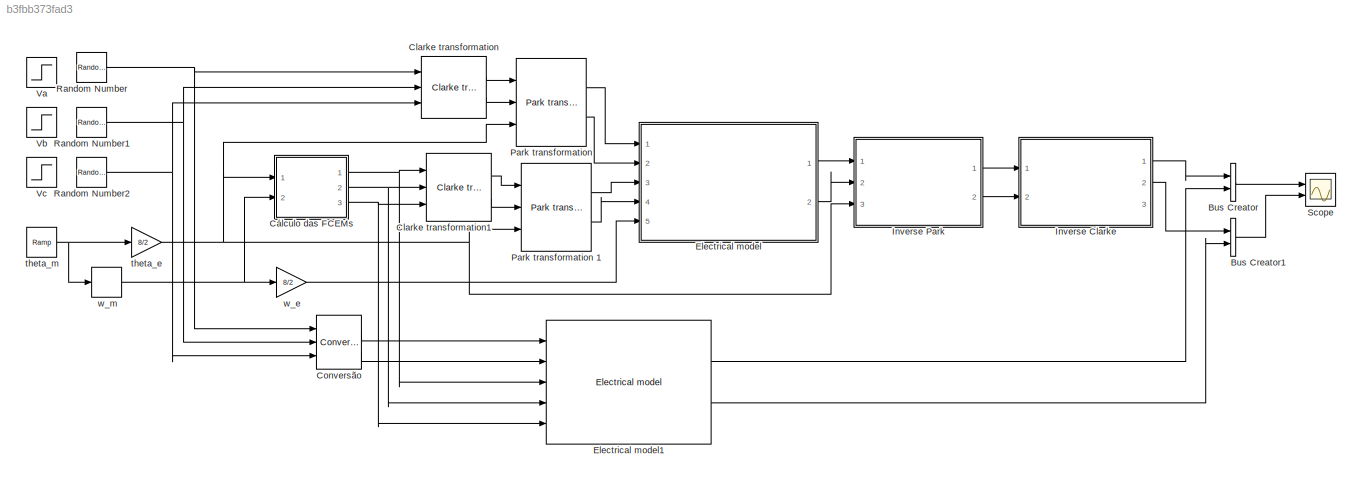
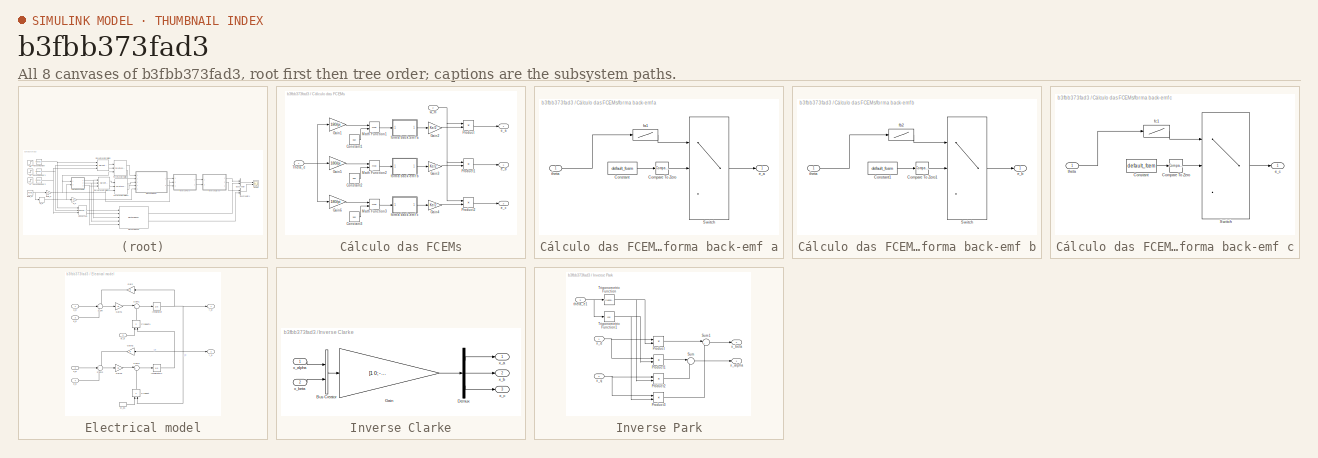
[diagram: thumbnail index - all 8 canvases of the model, root first then tree order]
MODEL slx_b3fbb373fad3
KIND model
BLOCK [BusCreator] Bus Creator
  DisplayOption = bar
  Inputs = 2
  Ports = [2, 1]
BLOCK [BusCreator] Bus Creator1
  DisplayOption = bar
  Inputs = 2
  Ports = [2, 1]
BLOCK [Reference] Clarke transformation  REF=Tools/Clarke transformation
  Ports = [3, 2]
  SourceBlock = Tools/Clarke transformation
  SourceType = SubSystem
BLOCK [Reference] Clarke transformation1  REF=Tools/Clarke transformation
  Ports = [3, 2]
  SourceBlock = Tools/Clarke transformation
  SourceType = SubSystem
BLOCK [Reference] Conversão  REF=BLDC/Conversão
  Ports = [3, 2]
  SourceBlock = BLDC/Conversão
  SourceType = SubSystem
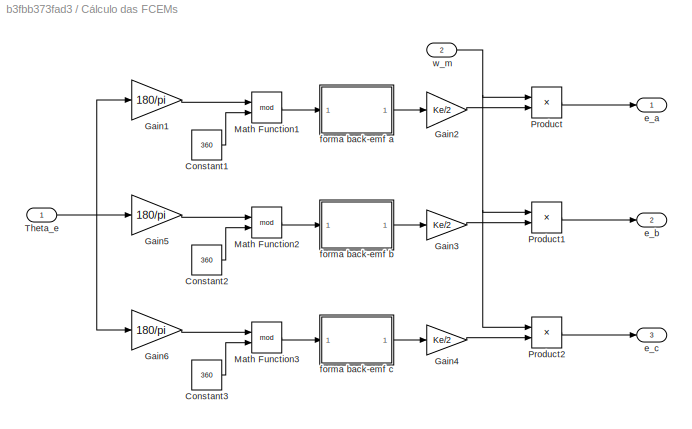
BLOCK [SubSystem] Cálculo das FCEMs
  FunctionWithSeparateData = off
  MaskHideContents = off
  MinAlgLoopOccurrences = off
  Opaque = off
  Ports = [2, 3]
  PropExecContextOutsideSubsystem = off
  RTWSystemCode = Auto
  RequestExecContextInheritance = off
BLOCK [Constant] Cálculo das FCEMs/Constant1
  Value = 360
BLOCK [Constant] Cálculo das FCEMs/Constant2
  Value = 360
BLOCK [Constant] Cálculo das FCEMs/Constant3
  Value = 360
BLOCK [Gain] Cálculo das FCEMs/Gain1
  Gain = 180/pi
  OutDataTypeStr = Inherit: Inherit via internal rule
  ParamDataTypeStr = Inherit: Inherit via internal rule
  SaturateOnIntegerOverflow = off
BLOCK [Gain] Cálculo das FCEMs/Gain2
  Gain = Ke/2
  OutDataTypeStr = Inherit: Inherit via internal rule
  ParamDataTypeStr = Inherit: Inherit via internal rule
  SaturateOnIntegerOverflow = off
BLOCK [Gain] Cálculo das FCEMs/Gain3
  Gain = Ke/2
  OutDataTypeStr = Inherit: Inherit via internal rule
  ParamDataTypeStr = Inherit: Inherit via internal rule
  SaturateOnIntegerOverflow = off
BLOCK [Gain] Cálculo das FCEMs/Gain4
  Gain = Ke/2
  OutDataTypeStr = Inherit: Inherit via internal rule
  ParamDataTypeStr = Inherit: Inherit via internal rule
  SaturateOnIntegerOverflow = off
BLOCK [Gain] Cálculo das FCEMs/Gain5
  Gain = 180/pi
  OutDataTypeStr = Inherit: Inherit via internal rule
  ParamDataTypeStr = Inherit: Inherit via internal rule
  SaturateOnIntegerOverflow = off
BLOCK [Gain] Cálculo das FCEMs/Gain6
  Gain = 180/pi
  OutDataTypeStr = Inherit: Inherit via internal rule
  ParamDataTypeStr = Inherit: Inherit via internal rule
  SaturateOnIntegerOverflow = off
BLOCK [Math] Cálculo das FCEMs/Math Function1
  Operator = mod
  Ports = [2, 1]
BLOCK [Math] Cálculo das FCEMs/Math Function2
  Operator = mod
  Ports = [2, 1]
BLOCK [Math] Cálculo das FCEMs/Math Function3
  Operator = mod
  Ports = [2, 1]
BLOCK [Product] Cálculo das FCEMs/Product
  InputSameDT = off
  OutDataTypeStr = Inherit: Inherit via internal rule
  Ports = [2, 1]
  SaturateOnIntegerOverflow = off
BLOCK [Product] Cálculo das FCEMs/Product1
  InputSameDT = off
  OutDataTypeStr = Inherit: Inherit via internal rule
  Ports = [2, 1]
  SaturateOnIntegerOverflow = off
BLOCK [Product] Cálculo das FCEMs/Product2
  InputSameDT = off
  OutDataTypeStr = Inherit: Inherit via internal rule
  Ports = [2, 1]
  SaturateOnIntegerOverflow = off
BLOCK [Inport] Cálculo das FCEMs/Theta_e
  IconDisplay = Port number
BLOCK [Outport] Cálculo das FCEMs/e_a
  IconDisplay = Port number
BLOCK [Outport] Cálculo das FCEMs/e_b
  IconDisplay = Port number
  Port = 2
BLOCK [Outport] Cálculo das FCEMs/e_c
  IconDisplay = Port number
  Port = 3
BLOCK [SubSystem] Cálculo das FCEMs/forma back-emf a
  FunctionWithSeparateData = off
  MaskHideContents = off
  MinAlgLoopOccurrences = off
  Opaque = off
  Ports = [1, 1]
  PropExecContextOutsideSubsystem = off
  RTWSystemCode = Auto
  RequestExecContextInheritance = off
BLOCK [Reference] Cálculo das FCEMs/forma back-emf a/Compare To Zero  REF=simulink/Logic and Bit
Operations/Compare
To Zero
  OutDataTypeStr = boolean
  Ports = [1, 1]
  SourceBlock = simulink/Logic and Bit\nOperations/Compare\nTo Zero
  SourceType = Compare To Zero
  ZeroCross = on
  relop = >
BLOCK [Constant] Cálculo das FCEMs/forma back-emf a/Constant
  Value = default_fcem
BLOCK [Switch] Cálculo das FCEMs/forma back-emf a/Switch
  InputSameDT = off
  SaturateOnIntegerOverflow = off
BLOCK [Outport] Cálculo das FCEMs/forma back-emf a/e_a
  IconDisplay = Port number
BLOCK [Lookup] Cálculo das FCEMs/forma back-emf a/fa1
  InputValues = [0 30 60 90 120 150 180 210 240 270 300 330 360]
  SaturateOnIntegerOverflow = off
  Table = [ 1 1 1 0 -1 -1 -1 -1 -1 0 1 1 1]
BLOCK [Inport] Cálculo das FCEMs/forma back-emf a/theta
  IconDisplay = Port number
BLOCK [SubSystem] Cálculo das FCEMs/forma back-emf b
  FunctionWithSeparateData = off
  MaskHideContents = off
  MinAlgLoopOccurrences = off
  Opaque = off
  Ports = [1, 1]
  PropExecContextOutsideSubsystem = off
  RTWSystemCode = Auto
  RequestExecContextInheritance = off
BLOCK [Reference] Cálculo das FCEMs/forma back-emf b/Compare To Zero1  REF=simulink/Logic and Bit
Operations/Compare
To Zero
  OutDataTypeStr = boolean
  Ports = [1, 1]
  SourceBlock = simulink/Logic and Bit\nOperations/Compare\nTo Zero
  SourceType = Compare To Zero
  ZeroCross = on
  relop = >
BLOCK [Constant] Cálculo das FCEMs/forma back-emf b/Constant1
  Value = default_fcem
BLOCK [Switch] Cálculo das FCEMs/forma back-emf b/Switch
  InputSameDT = off
  SaturateOnIntegerOverflow = off
BLOCK [Outport] Cálculo das FCEMs/forma back-emf b/e_b
  IconDisplay = Port number
BLOCK [Lookup] Cálculo das FCEMs/forma back-emf b/fb2
  InputValues = [0 30 60 90 120 150 180 210 240 270 300 330 360]
  SaturateOnIntegerOverflow = off
  Table = [-1 0 1 1 1 1 1 0 -1 -1 -1 -1 -1]
BLOCK [Inport] Cálculo das FCEMs/forma back-emf b/theta
  IconDisplay = Port number
BLOCK [SubSystem] Cálculo das FCEMs/forma back-emf c
  FunctionWithSeparateData = off
  MaskHideContents = off
  MinAlgLoopOccurrences = off
  Opaque = off
  Ports = [1, 1]
  PropExecContextOutsideSubsystem = off
  RTWSystemCode = Auto
  RequestExecContextInheritance = off
BLOCK [Reference] Cálculo das FCEMs/forma back-emf c/Compare To Zero  REF=simulink/Logic and Bit
Operations/Compare
To Zero
  OutDataTypeStr = boolean
  Ports = [1, 1]
  SourceBlock = simulink/Logic and Bit\nOperations/Compare\nTo Zero
  SourceType = Compare To Zero
  ZeroCross = on
  relop = >
BLOCK [Constant] Cálculo das FCEMs/forma back-emf c/Constant
  Value = default_fcem
BLOCK [Switch] Cálculo das FCEMs/forma back-emf c/Switch
  InputSameDT = off
  SaturateOnIntegerOverflow = off
BLOCK [Outport] Cálculo das FCEMs/forma back-emf c/e_c
  IconDisplay = Port number
BLOCK [Lookup] Cálculo das FCEMs/forma back-emf c/fc1
  InputValues = [0 30 60 90 120 150 180 210 240 270 300 330 360]
  SaturateOnIntegerOverflow = off
  Table = [-1 -1 -1 -1 -1 0 1 1 1 1 1 0 -1]
BLOCK [Inport] Cálculo das FCEMs/forma back-emf c/theta
  IconDisplay = Port number
BLOCK [Inport] Cálculo das FCEMs/w_m
  IconDisplay = Port number
  Port = 2
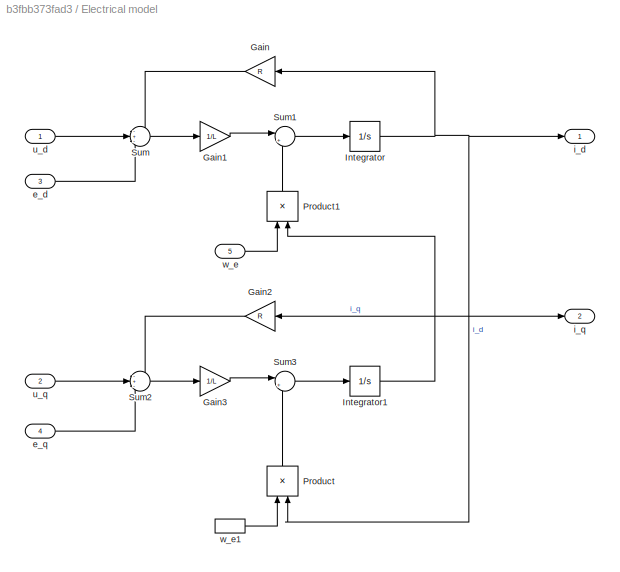
BLOCK [SubSystem] Electrical model
  FunctionWithSeparateData = off
  MaskHideContents = off
  MinAlgLoopOccurrences = off
  Opaque = off
  Ports = [5, 2]
  PropExecContextOutsideSubsystem = off
  RTWSystemCode = Auto
  RequestExecContextInheritance = off
BLOCK [Gain] Electrical model/Gain
  Gain = R
  OutDataTypeStr = Inherit: Inherit via internal rule
  ParamDataTypeStr = Inherit: Inherit via internal rule
  SaturateOnIntegerOverflow = off
BLOCK [Gain] Electrical model/Gain1
  Gain = 1/L
  OutDataTypeStr = Inherit: Inherit via internal rule
  ParamDataTypeStr = Inherit: Inherit via internal rule
  SaturateOnIntegerOverflow = off
BLOCK [Gain] Electrical model/Gain2
  Gain = R
  OutDataTypeStr = Inherit: Inherit via internal rule
  ParamDataTypeStr = Inherit: Inherit via internal rule
  SaturateOnIntegerOverflow = off
BLOCK [Gain] Electrical model/Gain3
  Gain = 1/L
  OutDataTypeStr = Inherit: Inherit via internal rule
  ParamDataTypeStr = Inherit: Inherit via internal rule
  SaturateOnIntegerOverflow = off
BLOCK [Integrator] Electrical model/Integrator
  Ports = [1, 1]
BLOCK [Integrator] Electrical model/Integrator1
  Ports = [1, 1]
BLOCK [Product] Electrical model/Product
  InputSameDT = off
  OutDataTypeStr = Inherit: Inherit via internal rule
  Ports = [2, 1]
  SaturateOnIntegerOverflow = off
BLOCK [Product] Electrical model/Product1
  InputSameDT = off
  OutDataTypeStr = Inherit: Inherit via internal rule
  Ports = [2, 1]
  SaturateOnIntegerOverflow = off
BLOCK [Sum] Electrical model/Sum
  IconShape = round
  InputSameDT = off
  Inputs = -+-
  OutDataTypeStr = Inherit: Inherit via internal rule
  Ports = [3, 1]
  SaturateOnIntegerOverflow = off
BLOCK [Sum] Electrical model/Sum1
  IconShape = round
  InputSameDT = off
  Inputs = |++
  OutDataTypeStr = Inherit: Inherit via internal rule
  Ports = [2, 1]
  SaturateOnIntegerOverflow = off
BLOCK [Sum] Electrical model/Sum2
  IconShape = round
  InputSameDT = off
  Inputs = -+-
  OutDataTypeStr = Inherit: Inherit via internal rule
  Ports = [3, 1]
  SaturateOnIntegerOverflow = off
BLOCK [Sum] Electrical model/Sum3
  IconShape = round
  InputSameDT = off
  Inputs = |+-
  OutDataTypeStr = Inherit: Inherit via internal rule
  Ports = [2, 1]
  SaturateOnIntegerOverflow = off
BLOCK [Inport] Electrical model/e_d
  IconDisplay = Port number
  Port = 3
BLOCK [Inport] Electrical model/e_q
  IconDisplay = Port number
  Port = 4
BLOCK [Outport] Electrical model/i_d
  IconDisplay = Port number
BLOCK [Outport] Electrical model/i_q
  IconDisplay = Port number
  Port = 2
BLOCK [Inport] Electrical model/u_d
  IconDisplay = Port number
BLOCK [Inport] Electrical model/u_q
  IconDisplay = Port number
  Port = 2
BLOCK [Inport] Electrical model/w_e
  IconDisplay = Port number
  Port = 5
BLOCK [InportShadow] Electrical model/w_e1
  IconDisplay = Port number
  LatchByDelayingOutsideSignal = off
  LatchInputForFeedbackSignals = off
  Port = 5
BLOCK [Reference] Electrical model1  REF=BLDC/BLDC/Electrical model
  Ports = [5, 2]
  SourceBlock = BLDC/BLDC/Electrical model
  SourceType = SubSystem
BLOCK [SubSystem] Inverse Clarke
  FunctionWithSeparateData = off
  MaskHideContents = off
  MinAlgLoopOccurrences = off
  Opaque = off
  Ports = [2, 3]
  PropExecContextOutsideSubsystem = off
  RTWSystemCode = Auto
  RequestExecContextInheritance = off
BLOCK [BusCreator] Inverse Clarke/Bus Creator
  DisplayOption = bar
  Inputs = 2
  Ports = [2, 1]
BLOCK [Demux] Inverse Clarke/Demux
  DisplayOption = bar
  Outputs = 3
  Ports = [1, 3]
BLOCK [Gain] Inverse Clarke/Gain
  Gain = [1 0; -1/2 sqrt(3)/2; -1/2 -sqrt(3)/2]
  Multiplication = Matrix(K*u)
  OutDataTypeStr = Inherit: Inherit via internal rule
  ParamDataTypeStr = Inherit: Inherit via internal rule
  SaturateOnIntegerOverflow = off
BLOCK [Outport] Inverse Clarke/x_a
  IconDisplay = Port number
BLOCK [Inport] Inverse Clarke/x_alpha
  IconDisplay = Port number
BLOCK [Outport] Inverse Clarke/x_b
  IconDisplay = Port number
  Port = 2
BLOCK [Inport] Inverse Clarke/x_beta
  IconDisplay = Port number
  Port = 2
BLOCK [Outport] Inverse Clarke/x_c
  IconDisplay = Port number
  Port = 3
BLOCK [SubSystem] Inverse Park
  FunctionWithSeparateData = off
  MaskHideContents = off
  MinAlgLoopOccurrences = off
  Opaque = off
  Ports = [3, 2]
  PropExecContextOutsideSubsystem = off
  RTWSystemCode = Auto
  RequestExecContextInheritance = off
BLOCK [Product] Inverse Park/Product
  InputSameDT = off
  OutDataTypeStr = Inherit: Inherit via internal rule
  Ports = [2, 1]
  SaturateOnIntegerOverflow = off
BLOCK [Product] Inverse Park/Product1
  InputSameDT = off
  OutDataTypeStr = Inherit: Inherit via internal rule
  Ports = [2, 1]
  SaturateOnIntegerOverflow = off
BLOCK [Product] Inverse Park/Product2
  InputSameDT = off
  OutDataTypeStr = Inherit: Inherit via internal rule
  Ports = [2, 1]
  SaturateOnIntegerOverflow = off
BLOCK [Product] Inverse Park/Product3
  InputSameDT = off
  OutDataTypeStr = Inherit: Inherit via internal rule
  Ports = [2, 1]
  SaturateOnIntegerOverflow = off
BLOCK [Sum] Inverse Park/Sum
  IconShape = round
  InputSameDT = off
  Inputs = |+-
  OutDataTypeStr = Inherit: Inherit via internal rule
  Ports = [2, 1]
  SaturateOnIntegerOverflow = off
BLOCK [Sum] Inverse Park/Sum1
  IconShape = round
  InputSameDT = off
  Inputs = |++
  OutDataTypeStr = Inherit: Inherit via internal rule
  Ports = [2, 1]
  SaturateOnIntegerOverflow = off
BLOCK [Trigonometry] Inverse Park/Trigonometric Function
  OutputSignalType = real
  Ports = [1, 1]
BLOCK [Trigonometry] Inverse Park/Trigonometric Function1
  Operator = cos
  OutputSignalType = real
  Ports = [1, 1]
BLOCK [Inport] Inverse Park/theta_e1
  IconDisplay = Port number
  Port = 3
BLOCK [Outport] Inverse Park/x_alpha 
  IconDisplay = Port number
BLOCK [Outport] Inverse Park/x_beta
  IconDisplay = Port number
  Port = 2
BLOCK [Inport] Inverse Park/x_d
  IconDisplay = Port number
BLOCK [Inport] Inverse Park/x_q
  IconDisplay = Port number
  Port = 2
BLOCK [Reference] Park transformation   REF=Tools/Park transformation 
  Ports = [3, 2]
  SourceBlock = Tools/Park transformation
  SourceType = SubSystem
BLOCK [Reference] Park transformation 1  REF=Tools/Park transformation 
  Ports = [3, 2]
  SourceBlock = Tools/Park transformation
  SourceType = SubSystem
BLOCK [RandomNumber] Random Number
  SampleTime = 1
  Variance = 1000
BLOCK [RandomNumber] Random Number1
  SampleTime = 1
  Seed = 1
  Variance = 1000
BLOCK [RandomNumber] Random Number2
  SampleTime = 1
  Seed = 2
  Variance = 1000
BLOCK [Scope] Scope
  DataFormat = StructureWithTime
  Floating = off
  LimitDataPoints = off
  NumInputPorts = 2
  Ports = [2]
  SampleTime = 0
  ShowLegends = off
  YMax = 5~5
  YMin = -5~-5
  ZoomMode = xonly
BLOCK [Step] Va
  After = 6
  SampleTime = 0
  Time = 0
BLOCK [Step] Vb
  After = 6
  SampleTime = 0
  Time = 0
BLOCK [Step] Vc
  After = 6
  SampleTime = 0
  Time = 0
BLOCK [Gain] theta_e
  Gain = 8/2
  OutDataTypeStr = Inherit: Inherit via internal rule
  ParamDataTypeStr = Inherit: Inherit via internal rule
  SaturateOnIntegerOverflow = off
BLOCK [Reference] theta_m  REF=simulink/Sources/Ramp
  Ports = [0, 1]
  SourceBlock = simulink/Sources/Ramp
  SourceType = Ramp
  VectorParams1D = on
  X0 = 0
  slope = 300
  start = 0
BLOCK [Gain] w_e
  Gain = 8/2
  OutDataTypeStr = Inherit: Inherit via internal rule
  ParamDataTypeStr = Inherit: Inherit via internal rule
  SaturateOnIntegerOverflow = off
BLOCK [Derivative] w_m
LINE Bus Creator1:1 -> Scope:2
LINE Bus Creator:1 -> Scope:1
LINE Clarke transformation1:1 -> Park transformation 1:1
LINE Clarke transformation1:2 -> Park transformation 1:2
LINE Clarke transformation:1 -> Park transformation :1
LINE Clarke transformation:2 -> Park transformation :2
LINE Conversão:1 -> Electrical model1:1
LINE Conversão:2 -> Electrical model1:2
LINE Cálculo das FCEMs/Constant1:1 -> Cálculo das FCEMs/Math Function1:2
LINE Cálculo das FCEMs/Constant2:1 -> Cálculo das FCEMs/Math Function2:2
LINE Cálculo das FCEMs/Constant3:1 -> Cálculo das FCEMs/Math Function3:2
LINE Cálculo das FCEMs/Gain1:1 -> Cálculo das FCEMs/Math Function1:1
LINE Cálculo das FCEMs/Gain2:1 -> Cálculo das FCEMs/Product:2
LINE Cálculo das FCEMs/Gain3:1 -> Cálculo das FCEMs/Product1:2
LINE Cálculo das FCEMs/Gain4:1 -> Cálculo das FCEMs/Product2:2
LINE Cálculo das FCEMs/Gain5:1 -> Cálculo das FCEMs/Math Function2:1
LINE Cálculo das FCEMs/Gain6:1 -> Cálculo das FCEMs/Math Function3:1
LINE Cálculo das FCEMs/Math Function1:1 -> Cálculo das FCEMs/forma back-emf a:1
LINE Cálculo das FCEMs/Math Function2:1 -> Cálculo das FCEMs/forma back-emf b:1
LINE Cálculo das FCEMs/Math Function3:1 -> Cálculo das FCEMs/forma back-emf c:1
LINE Cálculo das FCEMs/Product1:1 -> Cálculo das FCEMs/e_b:1
LINE Cálculo das FCEMs/Product2:1 -> Cálculo das FCEMs/e_c:1
LINE Cálculo das FCEMs/Product:1 -> Cálculo das FCEMs/e_a:1
NET Cálculo das FCEMs/Theta_e:1 -> Cálculo das FCEMs/Gain1:1, Cálculo das FCEMs/Gain5:1, Cálculo das FCEMs/Gain6:1
LINE Cálculo das FCEMs/forma back-emf a/Compare To Zero:1 -> Cálculo das FCEMs/forma back-emf a/Switch:2
LINE Cálculo das FCEMs/forma back-emf a/Constant:1 -> Cálculo das FCEMs/forma back-emf a/Compare To Zero:1
LINE Cálculo das FCEMs/forma back-emf a/Switch:1 -> Cálculo das FCEMs/forma back-emf a/e_a:1
LINE Cálculo das FCEMs/forma back-emf a/fa1:1 -> Cálculo das FCEMs/forma back-emf a/Switch:1
LINE Cálculo das FCEMs/forma back-emf a/theta:1 -> Cálculo das FCEMs/forma back-emf a/fa1:1
LINE Cálculo das FCEMs/forma back-emf a:1 -> Cálculo das FCEMs/Gain2:1
LINE Cálculo das FCEMs/forma back-emf b/Compare To Zero1:1 -> Cálculo das FCEMs/forma back-emf b/Switch:2
LINE Cálculo das FCEMs/forma back-emf b/Constant1:1 -> Cálculo das FCEMs/forma back-emf b/Compare To Zero1:1
LINE Cálculo das FCEMs/forma back-emf b/Switch:1 -> Cálculo das FCEMs/forma back-emf b/e_b:1
LINE Cálculo das FCEMs/forma back-emf b/fb2:1 -> Cálculo das FCEMs/forma back-emf b/Switch:1
LINE Cálculo das FCEMs/forma back-emf b/theta:1 -> Cálculo das FCEMs/forma back-emf b/fb2:1
LINE Cálculo das FCEMs/forma back-emf b:1 -> Cálculo das FCEMs/Gain3:1
LINE Cálculo das FCEMs/forma back-emf c/Compare To Zero:1 -> Cálculo das FCEMs/forma back-emf c/Switch:2
LINE Cálculo das FCEMs/forma back-emf c/Constant:1 -> Cálculo das FCEMs/forma back-emf c/Compare To Zero:1
LINE Cálculo das FCEMs/forma back-emf c/Switch:1 -> Cálculo das FCEMs/forma back-emf c/e_c:1
LINE Cálculo das FCEMs/forma back-emf c/fc1:1 -> Cálculo das FCEMs/forma back-emf c/Switch:1
LINE Cálculo das FCEMs/forma back-emf c/theta:1 -> Cálculo das FCEMs/forma back-emf c/fc1:1
LINE Cálculo das FCEMs/forma back-emf c:1 -> Cálculo das FCEMs/Gain4:1
NET Cálculo das FCEMs/w_m:1 -> Cálculo das FCEMs/Product1:1, Cálculo das FCEMs/Product2:1, Cálculo das FCEMs/Product:1
NET Cálculo das FCEMs:1 -> Clarke transformation1:1, Electrical model1:3
NET Cálculo das FCEMs:2 -> Clarke transformation1:2, Electrical model1:4
NET Cálculo das FCEMs:3 -> Clarke transformation1:3, Electrical model1:5
LINE Electrical model/Gain1:1 -> Electrical model/Sum1:1
LINE Electrical model/Gain2:1 -> Electrical model/Sum2:1
LINE Electrical model/Gain3:1 -> Electrical model/Sum3:1
LINE Electrical model/Gain:1 -> Electrical model/Sum:1
NET Electrical model/Integrator1:1 -> Electrical model/Gain2:1, Electrical model/Product1:2, Electrical model/i_q:1
NET Electrical model/Integrator:1 -> Electrical model/Gain:1, Electrical model/Product:2, Electrical model/i_d:1
LINE Electrical model/Product1:1 -> Electrical model/Sum1:2
LINE Electrical model/Product:1 -> Electrical model/Sum3:2
LINE Electrical model/Sum1:1 -> Electrical model/Integrator:1
LINE Electrical model/Sum2:1 -> Electrical model/Gain3:1
LINE Electrical model/Sum3:1 -> Electrical model/Integrator1:1
LINE Electrical model/Sum:1 -> Electrical model/Gain1:1
LINE Electrical model/e_d:1 -> Electrical model/Sum:3
LINE Electrical model/e_q:1 -> Electrical model/Sum2:3
LINE Electrical model/u_d:1 -> Electrical model/Sum:2
LINE Electrical model/u_q:1 -> Electrical model/Sum2:2
LINE Electrical model/w_e1:1 -> Electrical model/Product:1
LINE Electrical model/w_e:1 -> Electrical model/Product1:1
LINE Electrical model1:1 -> Bus Creator:2
LINE Electrical model1:2 -> Bus Creator1:2
LINE Electrical model:1 -> Inverse Park:1
LINE Electrical model:2 -> Inverse Park:2
LINE Inverse Clarke/Bus Creator:1 -> Inverse Clarke/Gain:1
LINE Inverse Clarke/Demux:1 -> Inverse Clarke/x_a:1
LINE Inverse Clarke/Demux:2 -> Inverse Clarke/x_b:1
LINE Inverse Clarke/Demux:3 -> Inverse Clarke/x_c:1
LINE Inverse Clarke/Gain:1 -> Inverse Clarke/Demux:1
LINE Inverse Clarke/x_alpha:1 -> Inverse Clarke/Bus Creator:1
LINE Inverse Clarke/x_beta:1 -> Inverse Clarke/Bus Creator:2
LINE Inverse Clarke:1 -> Bus Creator:1
LINE Inverse Clarke:2 -> Bus Creator1:1
LINE Inverse Park/Product1:1 -> Inverse Park/Sum:1
LINE Inverse Park/Product2:1 -> Inverse Park/Sum:2
LINE Inverse Park/Product3:1 -> Inverse Park/Sum1:2
LINE Inverse Park/Product:1 -> Inverse Park/Sum1:1
LINE Inverse Park/Sum1:1 -> Inverse Park/x_beta:1
LINE Inverse Park/Sum:1 -> Inverse Park/x_alpha :1
NET Inverse Park/Trigonometric Function1:1 -> Inverse Park/Product1:2, Inverse Park/Product3:2
NET Inverse Park/Trigonometric Function:1 -> Inverse Park/Product2:2, Inverse Park/Product:2
NET Inverse Park/theta_e1:1 -> Inverse Park/Trigonometric Function1:1, Inverse Park/Trigonometric Function:1
NET Inverse Park/x_d:1 -> Inverse Park/Product1:1, Inverse Park/Product:1
NET Inverse Park/x_q:1 -> Inverse Park/Product2:1, Inverse Park/Product3:1
LINE Inverse Park:1 -> Inverse Clarke:1
LINE Inverse Park:2 -> Inverse Clarke:2
LINE Park transformation 1:1 -> Electrical model:3
LINE Park transformation 1:2 -> Electrical model:4
LINE Park transformation :1 -> Electrical model:1
LINE Park transformation :2 -> Electrical model:2
NET Random Number1:1 -> Clarke transformation:2, Conversão:2
NET Random Number2:1 -> Clarke transformation:3, Conversão:3
NET Random Number:1 -> Clarke transformation:1, Conversão:1
NET theta_e:1 -> Cálculo das FCEMs:1, Inverse Park:3, Park transformation 1:3, Park transformation :3
NET theta_m:1 -> theta_e:1, w_m:1
LINE w_e:1 -> Electrical model:5
NET w_m:1 -> Cálculo das FCEMs:2, w_e:1
note: NET lines group one-source signal fan-out (src -> all destinations, sorted); 1:1 wires keep LINE
